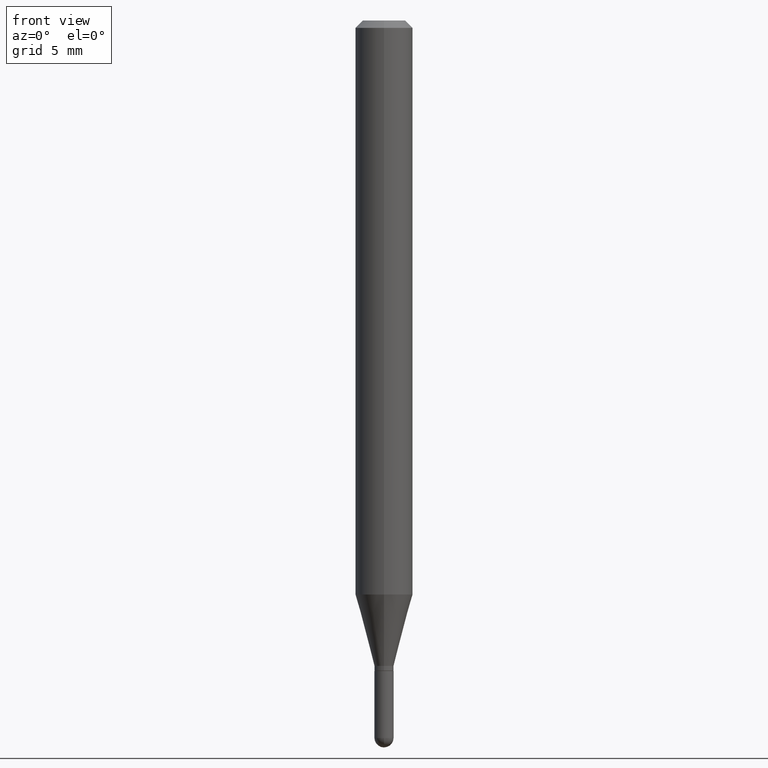
[diagram: clean part render]
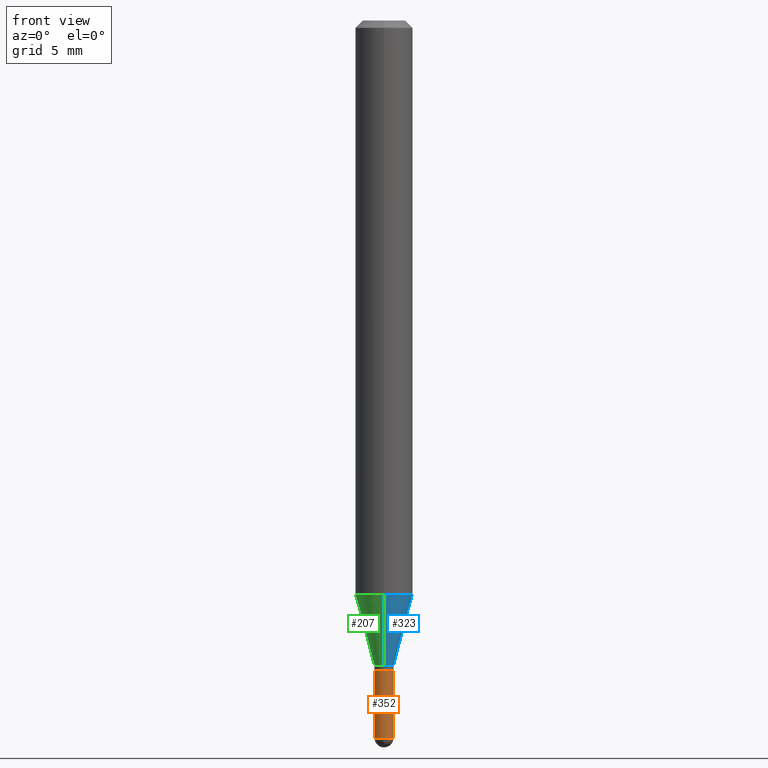
[diagram: same view with three faces highlighted in distinct colors, each labeled with its STEP entity id]
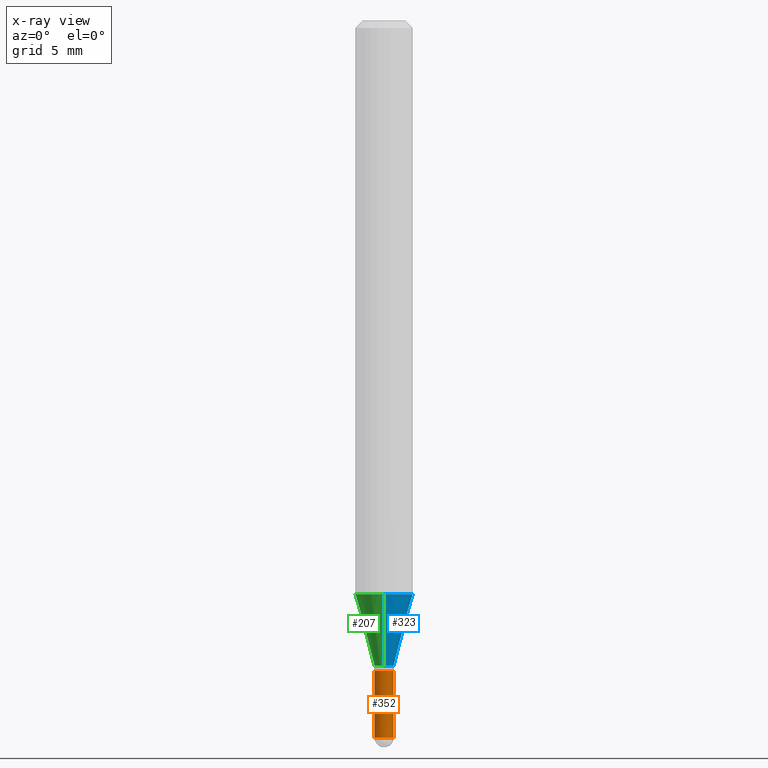
[diagram: x-ray of the same camera — body ghosted, the three highlighted faces saturated]
A machine part, front view with three faces highlighted in distinct colors.
The next image is the same camera in x-ray (body ghosted, the three faces saturated) — at least one of them is partly hidden behind the body in this view.
Their STEP definitions:

[orange] entity #352 — the highlighted cylindrical surface (edge-blend (fillet) strip) has radius 0.5004 mm, axis along (-0, 0, 1).
#8 = LINE ( 'NONE', #329, #235 ) ;
#19 = VERTEX_POINT ( 'NONE', #24 ) ;
#24 = CARTESIAN_POINT ( 'NONE',  ( 0.01969999999999982529, -5.051824349172144243E-15, -1.476399999999999935 ) ) ;
#34 = CARTESIAN_POINT ( 'NONE',  ( -0.01969999999999982529, -4.774283065476988875E-15, -1.476399999999999935 ) ) ;
#97 = DIRECTION ( 'NONE',  ( 1.000000000000000000, -6.982962677686242256E-15, 0.000000000000000000 ) ) ;
#121 = CARTESIAN_POINT ( 'NONE',  ( -0.01969999999999982529, -4.774283065476988875E-15, -1.338599999999999790 ) ) ;
#124 = CARTESIAN_POINT ( 'NONE',  ( 3.610490145451735091E-29, -5.154823048668019264E-15, -1.476399999999999935 ) ) ;
#126 = VERTEX_POINT ( 'NONE', #217 ) ;
#127 = DIRECTION ( 'NONE',  ( -2.445468806185136597E-29, 3.491481338843145583E-15, 1.000000000000000000 ) ) ;
#128 = EDGE_CURVE ( 'NONE', #509, #154, #402, .T. ) ;
#152 = EDGE_CURVE ( 'NONE', #434, #126, #484, .T. ) ;
#154 = VERTEX_POINT ( 'NONE', #381 ) ;
#159 = AXIS2_PLACEMENT_3D ( 'NONE', #286, #324, #241 ) ;
#171 = LINE ( 'NONE', #201, #420 ) ;
#197 = ORIENTED_EDGE ( 'NONE', *, *, #152, .F. ) ;
#201 = CARTESIAN_POINT ( 'NONE',  ( -0.01969999999999982529, 1.399769189447384952E-16, -9.690302127802078423E-31 ) ) ;
#205 = DIRECTION ( 'NONE',  ( -2.445468806185136877E-29, 3.491481338843145188E-15, 1.000000000000000000 ) ) ;
#212 = ORIENTED_EDGE ( 'NONE', *, *, #337, .F. ) ;
#217 = CARTESIAN_POINT ( 'NONE',  ( 0.01969999999999982529, -4.811261284925851584E-15, -1.338599999999999790 ) ) ;
#235 = VECTOR ( 'NONE', #401, 39.37007874015748143 ) ;
#241 = DIRECTION ( 'NONE',  ( 1.000000000000000000, -6.982962677686266711E-15, 4.876176775795936353E-29 ) ) ;
#260 = DIRECTION ( 'NONE',  ( 1.000000000000000000, -6.982962677686291165E-15, 0.000000000000000000 ) ) ;
#275 = EDGE_LOOP ( 'NONE', ( #212, #287, #354, #367, #197 ) ) ;
#278 = CYLINDRICAL_SURFACE ( 'NONE', #159, 0.01969999999999982529 ) ;
#281 = AXIS2_PLACEMENT_3D ( 'NONE', #335, #306, #260 ) ;
#286 = CARTESIAN_POINT ( 'NONE',  ( 0.000000000000000000, 0.000000000000000000, 0.000000000000000000 ) ) ;
#287 = ORIENTED_EDGE ( 'NONE', *, *, #128, .T. ) ;
#294 = AXIS2_PLACEMENT_3D ( 'NONE', #124, #127, #443 ) ;
#306 = DIRECTION ( 'NONE',  ( -2.445468806185136597E-29, 3.491481338843145583E-15, 1.000000000000000000 ) ) ;
#311 = CIRCLE ( 'NONE', #294, 0.01969999999999982529 ) ;
#320 = FACE_OUTER_BOUND ( 'NONE', #275, .T. ) ;
#324 = DIRECTION ( 'NONE',  ( -2.445468806185136597E-29, 3.491481338843145583E-15, 1.000000000000000000 ) ) ;
#329 = CARTESIAN_POINT ( 'NONE',  ( 0.01969999999999982529, -1.375643647504182283E-16, 9.606068248317909140E-31 ) ) ;
#335 = CARTESIAN_POINT ( 'NONE',  ( 3.610490145451735091E-29, -5.154823048668019264E-15, -1.476399999999999935 ) ) ;
#337 = EDGE_CURVE ( 'NONE', #509, #434, #171, .T. ) ;
#352 = ADVANCED_FACE ( 'NONE', ( #320 ), #278, .T. ) ;
#354 = ORIENTED_EDGE ( 'NONE', *, *, #457, .T. ) ;
#367 = ORIENTED_EDGE ( 'NONE', *, *, #430, .T. ) ;
#380 = AXIS2_PLACEMENT_3D ( 'NONE', #385, #456, #97 ) ;
#381 = CARTESIAN_POINT ( 'NONE',  ( -1.399769189447037360E-16, -0.01970000000000517865, -1.476399999999999935 ) ) ;
#385 = CARTESIAN_POINT ( 'NONE',  ( 3.273504543959423352E-29, -4.673696920175433159E-15, -1.338599999999999790 ) ) ;
#401 = DIRECTION ( 'NONE',  ( -2.445468806185136877E-29, 3.491481338843145188E-15, 1.000000000000000000 ) ) ;
#402 = CIRCLE ( 'NONE', #281, 0.01969999999999982529 ) ;
#420 = VECTOR ( 'NONE', #205, 39.37007874015748143 ) ;
#430 = EDGE_CURVE ( 'NONE', #19, #126, #8, .T. ) ;
#434 = VERTEX_POINT ( 'NONE', #121 ) ;
#443 = DIRECTION ( 'NONE',  ( 1.000000000000000000, -6.982962677686291165E-15, 0.000000000000000000 ) ) ;
#456 = DIRECTION ( 'NONE',  ( -2.445468806185136597E-29, 3.491481338843145583E-15, 1.000000000000000000 ) ) ;
#457 = EDGE_CURVE ( 'NONE', #154, #19, #311, .T. ) ;
#484 = CIRCLE ( 'NONE', #380, 0.01969999999999982529 ) ;
#509 = VERTEX_POINT ( 'NONE', #34 ) ;

[blue] entity #323 — the highlighted conical surface has half-angle 15 deg.
#25 = EDGE_CURVE ( 'NONE', #316, #409, #75, .T. ) ;
#56 = CIRCLE ( 'NONE', #149, 0.05905000000000001914 ) ;
#57 = DIRECTION ( 'NONE',  ( -1.807323732225327378E-15, -0.2588190451025177974, 0.9659258262890690894 ) ) ;
#59 = DIRECTION ( 'NONE',  ( -2.446843767584321492E-29, 3.489512315861569973E-15, 1.000000000000000000 ) ) ;
#66 = CARTESIAN_POINT ( 'NONE',  ( 4.195754854663678920E-16, 0.05904999999999587662, -1.181243800722164172 ) ) ;
#75 = CIRCLE ( 'NONE', #327, 0.01969999999999975590 ) ;
#80 = EDGE_LOOP ( 'NONE', ( #187, #120, #255, #362 ) ) ;
#84 = VERTEX_POINT ( 'NONE', #66 ) ;
#88 = FACE_OUTER_BOUND ( 'NONE', #80, .T. ) ;
#93 = AXIS2_PLACEMENT_3D ( 'NONE', #161, #487, #208 ) ;
#101 = LINE ( 'NONE', #219, #334 ) ;
#120 = ORIENTED_EDGE ( 'NONE', *, *, #125, .T. ) ;
#125 = EDGE_CURVE ( 'NONE', #409, #84, #101, .T. ) ;
#149 = AXIS2_PLACEMENT_3D ( 'NONE', #439, #326, #489 ) ;
#161 = CARTESIAN_POINT ( 'NONE',  ( 3.249653207728737815E-29, -4.634421306695751021E-15, -1.328100000000000058 ) ) ;
#181 = CARTESIAN_POINT ( 'NONE',  ( 3.249653207728737815E-29, -4.634421306695751021E-15, -1.328100000000000058 ) ) ;
#187 = ORIENTED_EDGE ( 'NONE', *, *, #25, .T. ) ;
#208 = DIRECTION ( 'NONE',  ( -6.982962677686264344E-15, -1.000000000000000000, 0.000000000000000000 ) ) ;
#219 = CARTESIAN_POINT ( 'NONE',  ( 1.399769189447704441E-16, 0.01969999999999511725, -1.328100000000000058 ) ) ;
#255 = ORIENTED_EDGE ( 'NONE', *, *, #444, .F. ) ;
#257 = DIRECTION ( 'NONE',  ( -6.982962677686264344E-15, -1.000000000000000000, 0.000000000000000000 ) ) ;
#269 = CARTESIAN_POINT ( 'NONE',  ( -1.375643647503852441E-16, -0.01970000000000439108, -1.328100000000000058 ) ) ;
#271 = CARTESIAN_POINT ( 'NONE',  ( -4.123439461173452886E-16, -0.05905000000000415472, -1.181243800722163728 ) ) ;
#283 = VERTEX_POINT ( 'NONE', #271 ) ;
#316 = VERTEX_POINT ( 'NONE', #269 ) ;
#323 = ADVANCED_FACE ( 'NONE', ( #88 ), #435, .T. ) ;
#326 = DIRECTION ( 'NONE',  ( -2.446843767584321492E-29, 3.489512315861569973E-15, 1.000000000000000000 ) ) ;
#327 = AXIS2_PLACEMENT_3D ( 'NONE', #181, #59, #257 ) ;
#331 = CARTESIAN_POINT ( 'NONE',  ( -1.375643647503852441E-16, -0.01970000000000439108, -1.328100000000000058 ) ) ;
#334 = VECTOR ( 'NONE', #343, 39.37007874015748854 ) ;
#343 = DIRECTION ( 'NONE',  ( 1.839019923739597160E-15, 0.2588190451025245142, 0.9659258262890670910 ) ) ;
#362 = ORIENTED_EDGE ( 'NONE', *, *, #486, .F. ) ;
#409 = VERTEX_POINT ( 'NONE', #482 ) ;
#410 = LINE ( 'NONE', #331, #493 ) ;
#435 = CONICAL_SURFACE ( 'NONE', #93, 0.01969999999999975590, 0.2617993877991498519 ) ;
#439 = CARTESIAN_POINT ( 'NONE',  ( 2.890319031794642916E-29, -4.121964790655120932E-15, -1.181243800722163950 ) ) ;
#444 = EDGE_CURVE ( 'NONE', #283, #84, #56, .T. ) ;
#482 = CARTESIAN_POINT ( 'NONE',  ( 2.797762022055693776E-16, 0.01969999999999511725, -1.328100000000000058 ) ) ;
#486 = EDGE_CURVE ( 'NONE', #316, #283, #410, .T. ) ;
#487 = DIRECTION ( 'NONE',  ( -2.446843767584321492E-29, 3.489512315861569973E-15, 1.000000000000000000 ) ) ;
#489 = DIRECTION ( 'NONE',  ( -6.982962677686265922E-15, -1.000000000000000000, 4.626330217890367758E-15 ) ) ;
#493 = VECTOR ( 'NONE', #57, 39.37007874015748143 ) ;

[green] entity #207 — the highlighted conical surface has half-angle 15 deg.
#12 = CIRCLE ( 'NONE', #459, 0.05905000000000001914 ) ;
#30 = CONICAL_SURFACE ( 'NONE', #461, 0.01969999999999975590, 0.2617993877991498519 ) ;
#45 = ORIENTED_EDGE ( 'NONE', *, *, #125, .F. ) ;
#57 = DIRECTION ( 'NONE',  ( -1.807323732225327378E-15, -0.2588190451025177974, 0.9659258262890690894 ) ) ;
#66 = CARTESIAN_POINT ( 'NONE',  ( 4.195754854663678920E-16, 0.05904999999999587662, -1.181243800722164172 ) ) ;
#84 = VERTEX_POINT ( 'NONE', #66 ) ;
#87 = ORIENTED_EDGE ( 'NONE', *, *, #184, .F. ) ;
#90 = DIRECTION ( 'NONE',  ( -2.446843767584321492E-29, 3.489512315861569973E-15, 1.000000000000000000 ) ) ;
#95 = ORIENTED_EDGE ( 'NONE', *, *, #465, .T. ) ;
#101 = LINE ( 'NONE', #219, #334 ) ;
#125 = EDGE_CURVE ( 'NONE', #409, #84, #101, .T. ) ;
#166 = EDGE_LOOP ( 'NONE', ( #45, #95, #215, #87 ) ) ;
#173 = CARTESIAN_POINT ( 'NONE',  ( 3.249653207728737815E-29, -4.634421306695751021E-15, -1.328100000000000058 ) ) ;
#184 = EDGE_CURVE ( 'NONE', #84, #283, #12, .T. ) ;
#193 = AXIS2_PLACEMENT_3D ( 'NONE', #173, #90, #249 ) ;
#207 = ADVANCED_FACE ( 'NONE', ( #505 ), #30, .T. ) ;
#215 = ORIENTED_EDGE ( 'NONE', *, *, #486, .T. ) ;
#219 = CARTESIAN_POINT ( 'NONE',  ( 1.399769189447704441E-16, 0.01969999999999511725, -1.328100000000000058 ) ) ;
#249 = DIRECTION ( 'NONE',  ( -6.982962677686264344E-15, -1.000000000000000000, 0.000000000000000000 ) ) ;
#269 = CARTESIAN_POINT ( 'NONE',  ( -1.375643647503852441E-16, -0.01970000000000439108, -1.328100000000000058 ) ) ;
#271 = CARTESIAN_POINT ( 'NONE',  ( -4.123439461173452886E-16, -0.05905000000000415472, -1.181243800722163728 ) ) ;
#274 = DIRECTION ( 'NONE',  ( -2.446843767584321492E-29, 3.489512315861569973E-15, 1.000000000000000000 ) ) ;
#283 = VERTEX_POINT ( 'NONE', #271 ) ;
#314 = CARTESIAN_POINT ( 'NONE',  ( 3.249653207728737815E-29, -4.634421306695751021E-15, -1.328100000000000058 ) ) ;
#316 = VERTEX_POINT ( 'NONE', #269 ) ;
#318 = DIRECTION ( 'NONE',  ( -6.982962677686264344E-15, -1.000000000000000000, 0.000000000000000000 ) ) ;
#331 = CARTESIAN_POINT ( 'NONE',  ( -1.375643647503852441E-16, -0.01970000000000439108, -1.328100000000000058 ) ) ;
#334 = VECTOR ( 'NONE', #343, 39.37007874015748854 ) ;
#341 = CIRCLE ( 'NONE', #193, 0.01969999999999975590 ) ;
#343 = DIRECTION ( 'NONE',  ( 1.839019923739597160E-15, 0.2588190451025245142, 0.9659258262890670910 ) ) ;
#400 = DIRECTION ( 'NONE',  ( -6.982962677686265922E-15, -1.000000000000000000, 4.626330217890367758E-15 ) ) ;
#409 = VERTEX_POINT ( 'NONE', #482 ) ;
#410 = LINE ( 'NONE', #331, #493 ) ;
#459 = AXIS2_PLACEMENT_3D ( 'NONE', #474, #274, #400 ) ;
#461 = AXIS2_PLACEMENT_3D ( 'NONE', #314, #472, #318 ) ;
#465 = EDGE_CURVE ( 'NONE', #409, #316, #341, .T. ) ;
#472 = DIRECTION ( 'NONE',  ( -2.446843767584321492E-29, 3.489512315861569973E-15, 1.000000000000000000 ) ) ;
#474 = CARTESIAN_POINT ( 'NONE',  ( 2.890319031794642916E-29, -4.121964790655120932E-15, -1.181243800722163950 ) ) ;
#482 = CARTESIAN_POINT ( 'NONE',  ( 2.797762022055693776E-16, 0.01969999999999511725, -1.328100000000000058 ) ) ;
#486 = EDGE_CURVE ( 'NONE', #316, #283, #410, .T. ) ;
#493 = VECTOR ( 'NONE', #57, 39.37007874015748143 ) ;
#505 = FACE_OUTER_BOUND ( 'NONE', #166, .T. ) ;